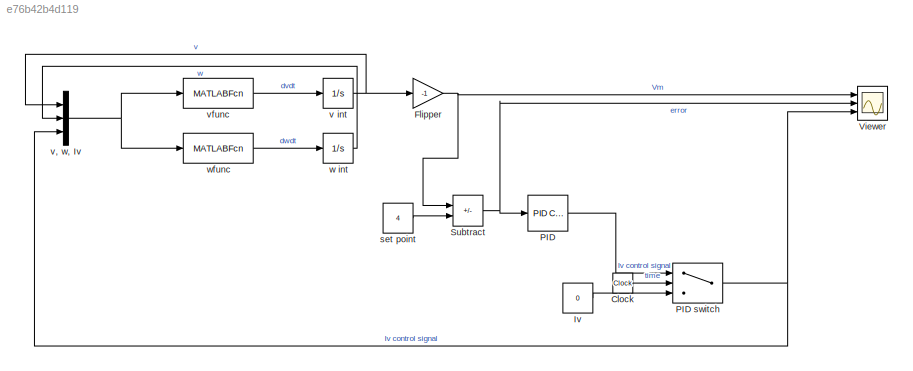
MODEL slx_e76b42b4d119
KIND model
CONFIG AbsTol = auto
CONFIG EnableMultiTasking = off
CONFIG FixedStep = auto
CONFIG MaxStep = auto
CONFIG MinStep = auto
CONFIG RelTol = 1e-3
CONFIG SampleTimeConstraint = Unconstrained
CONFIG SolverName = VariableStepAuto
CONFIG StartTime = 0.0
CONFIG StopTime = 6
BLOCK [Clock] Clock
BLOCK [Gain] Flipper
  Gain = -1
BLOCK [Constant] Iv
  Value = 0
BLOCK [Reference] PID  REF=slpidlib/PID Controller
  Ports = [1, 1]
  SourceBlock = slpidlib/PID Controller
  SourceProductBaseCode = SL
  SourceType = PID 1dof
BLOCK [Switch] PID switch
  InputSameDT = off
  SaturateOnIntegerOverflow = off
  Threshold = 2
BLOCK [Sum] Subtract
  IconShape = rectangular
  Inputs = -+
  Ports = [2, 1]
BLOCK [Scope] Viewer
  Floating = off
  NumInputPorts = 3
  Ports = [3]
  ScopeSpecificationString = Simulink.scopes.TimeScopeBlockCfg('CurrentConfiguration', extmgr.ConfigurationSet(extmgr.Configuration('Core','General UI',true,'FigureColor',[1 1 1]),extmgr.Configuration('Core','Source UI',true),extmgr.Configuration('Sources','WiredSimulink',true),extmgr.Configuration('Visuals','Time Domain',true,'TimeAxisLabels','All','SerializedDisplays',{struct('MinYLimReal','-4.52233','MaxYLimReal','2.59582'...<+3211ch>
BLOCK [Constant] set point
  Value = 4
BLOCK [Integrator] v int
  InitialCondition = -0.5
  Ports = [1, 1]
BLOCK [Mux] v, w, Iv
  DisplayOption = bar
  Inputs = 3
  Ports = [3, 1]
BLOCK [MATLABFcn] vfunc
  MATLABFcn = vfunc
  OutputDimensions = 1
  Ports = [1, 1]
BLOCK [Integrator] w int
  InitialCondition = -0.5
  Ports = [1, 1]
BLOCK [MATLABFcn] wfunc
  MATLABFcn = wfunc
  OutputDimensions = 1
  Ports = [1, 1]
LINE Clock:1 -> PID switch:2
NET Flipper:1 -> Subtract:1, Viewer:1
LINE Iv:1 -> PID switch:3
NET PID switch:1 -> Viewer:3, v, w, Iv:3
LINE PID:1 -> PID switch:1
NET Subtract:1 -> PID:1, Viewer:2
LINE set point:1 -> Subtract:2
NET v int:1 -> Flipper:1, v, w, Iv:1
NET v, w, Iv:1 -> vfunc:1, wfunc:1
LINE vfunc:1 -> v int:1
LINE w int:1 -> v, w, Iv:2
LINE wfunc:1 -> w int:1
note: NET lines group one-source signal fan-out (src -> all destinations, sorted); 1:1 wires keep LINE
